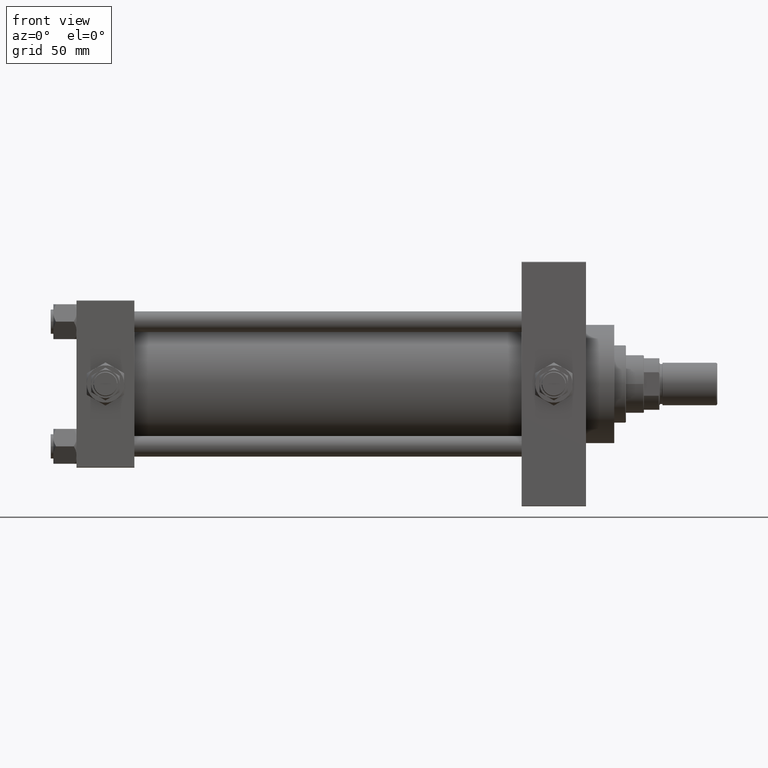
[diagram: clean part render]
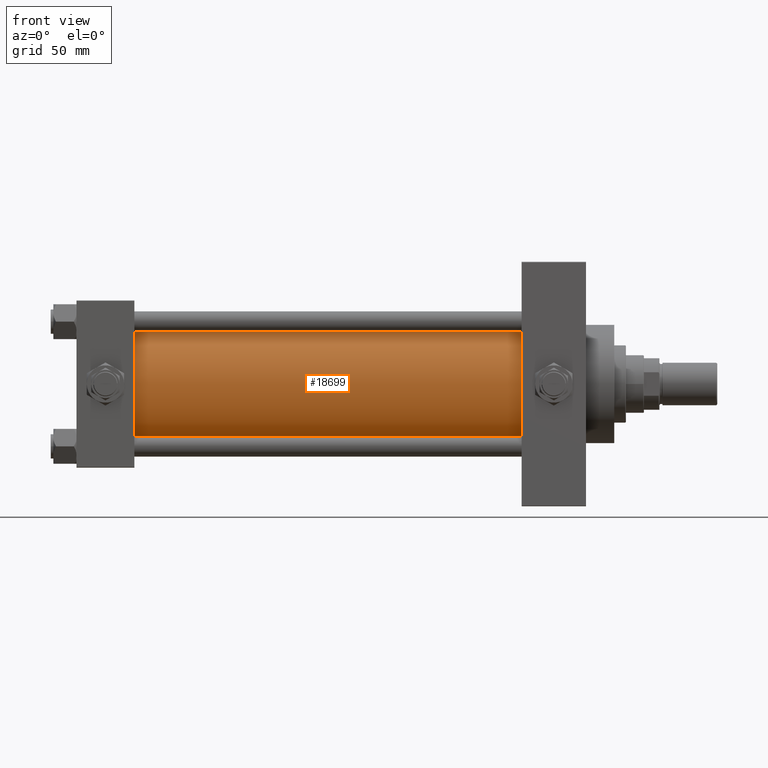
[diagram: same view with one face highlighted and labeled with its STEP entity id]
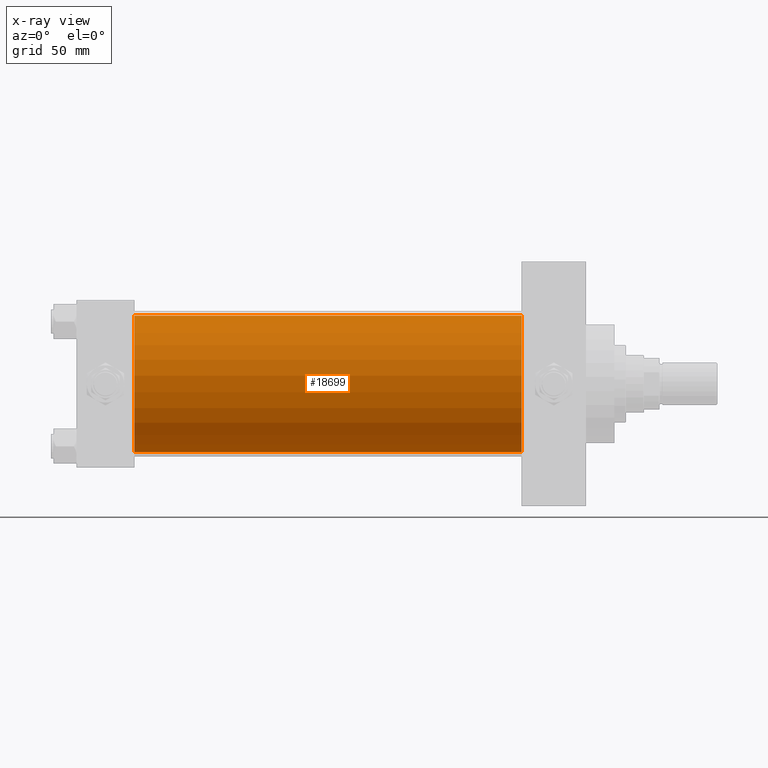
[diagram: x-ray of the same camera — body ghosted, the highlighted face saturated]
A machine part, front view. The second image highlights one B-rep face of the part: STEP entity #18699.
The next image is the same camera in x-ray: the body ghosted, the highlighted face saturated — about 0% of this face is hidden behind the body in this view.
In plain terms, the highlighted cylindrical surface (partial cylindrical patch) has radius 53 mm, axis along (-1, -0, -0).
Its self-contained STEP definition (entity closure, byte-faithful):
#6519 = LINE ( 'NONE', #21763, #44213 ) ;
#6560 = CARTESIAN_POINT ( 'NONE',  ( 346.0000000000000000, 3.888542821515762466E-15, -53.00000000000000711 ) ) ;
#7448 = CARTESIAN_POINT ( 'NONE',  ( 346.0000000000000000, 3.888542821515762466E-15, -53.00000000000000711 ) ) ;
#7729 = EDGE_CURVE ( 'NONE', #32960, #15531, #32600, .T. ) ;
#8015 = AXIS2_PLACEMENT_3D ( 'NONE', #31390, #46873, #43063 ) ;
#11987 = DIRECTION ( 'NONE',  ( 0.000000000000000000, 0.000000000000000000, -1.000000000000000000 ) ) ;
#12482 = CARTESIAN_POINT ( 'NONE',  ( 346.0000000000000000, -2.602085213965210642E-15, 0.000000000000000000 ) ) ;
#14201 = DIRECTION ( 'NONE',  ( 0.000000000000000000, 0.000000000000000000, 1.000000000000000000 ) ) ;
#14218 = EDGE_LOOP ( 'NONE', ( #49142, #39408, #38434, #39249 ) ) ;
#14696 = CARTESIAN_POINT ( 'NONE',  ( 346.0000000000000000, -2.602085213965210642E-15, 53.00000000000000711 ) ) ;
#15324 = EDGE_CURVE ( 'NONE', #25164, #15531, #37315, .T. ) ;
#15326 = VERTEX_POINT ( 'NONE', #14696 ) ;
#15531 = VERTEX_POINT ( 'NONE', #31391 ) ;
#17125 = AXIS2_PLACEMENT_3D ( 'NONE', #12482, #19598, #11987 ) ;
#18699 = ADVANCED_FACE ( 'NONE', ( #26591 ), #26843, .T. ) ;
#19598 = DIRECTION ( 'NONE',  ( 1.000000000000000000, 0.000000000000000000, 0.000000000000000000 ) ) ;
#21763 = CARTESIAN_POINT ( 'NONE',  ( 346.0000000000000000, -2.602085213965210642E-15, 53.00000000000000711 ) ) ;
#21978 = CIRCLE ( 'NONE', #17125, 53.00000000000000711 ) ;
#22876 = AXIS2_PLACEMENT_3D ( 'NONE', #37318, #48984, #14201 ) ;
#25164 = VERTEX_POINT ( 'NONE', #7448 ) ;
#25840 = DIRECTION ( 'NONE',  ( -1.000000000000000000, -0.000000000000000000, -0.000000000000000000 ) ) ;
#26591 = FACE_OUTER_BOUND ( 'NONE', #14218, .T. ) ;
#26687 = EDGE_CURVE ( 'NONE', #15326, #25164, #21978, .T. ) ;
#26843 = CYLINDRICAL_SURFACE ( 'NONE', #8015, 53.00000000000000711 ) ;
#29027 = VECTOR ( 'NONE', #48981, 1000.000000000000000 ) ;
#31390 = CARTESIAN_POINT ( 'NONE',  ( 346.0000000000000000, -2.602085213965210642E-15, 0.000000000000000000 ) ) ;
#31391 = CARTESIAN_POINT ( 'NONE',  ( 44.99999999999998579, 3.888542821515762466E-15, -53.00000000000000711 ) ) ;
#32600 = CIRCLE ( 'NONE', #22876, 53.00000000000000711 ) ;
#32960 = VERTEX_POINT ( 'NONE', #48175 ) ;
#37315 = LINE ( 'NONE', #6560, #29027 ) ;
#37318 = CARTESIAN_POINT ( 'NONE',  ( 44.99999999999998579, -2.602085213965210642E-15, 0.000000000000000000 ) ) ;
#38315 = EDGE_CURVE ( 'NONE', #15326, #32960, #6519, .T. ) ;
#38434 = ORIENTED_EDGE ( 'NONE', *, *, #38315, .T. ) ;
#39249 = ORIENTED_EDGE ( 'NONE', *, *, #7729, .T. ) ;
#39408 = ORIENTED_EDGE ( 'NONE', *, *, #26687, .F. ) ;
#43063 = DIRECTION ( 'NONE',  ( 0.000000000000000000, 0.000000000000000000, 1.000000000000000000 ) ) ;
#44213 = VECTOR ( 'NONE', #25840, 1000.000000000000000 ) ;
#46873 = DIRECTION ( 'NONE',  ( -1.000000000000000000, -0.000000000000000000, -0.000000000000000000 ) ) ;
#48175 = CARTESIAN_POINT ( 'NONE',  ( 44.99999999999998579, -2.602085213965210642E-15, 53.00000000000000711 ) ) ;
#48981 = DIRECTION ( 'NONE',  ( -1.000000000000000000, -0.000000000000000000, -0.000000000000000000 ) ) ;
#48984 = DIRECTION ( 'NONE',  ( 1.000000000000000000, -0.000000000000000000, 0.000000000000000000 ) ) ;
#49142 = ORIENTED_EDGE ( 'NONE', *, *, #15324, .F. ) ;